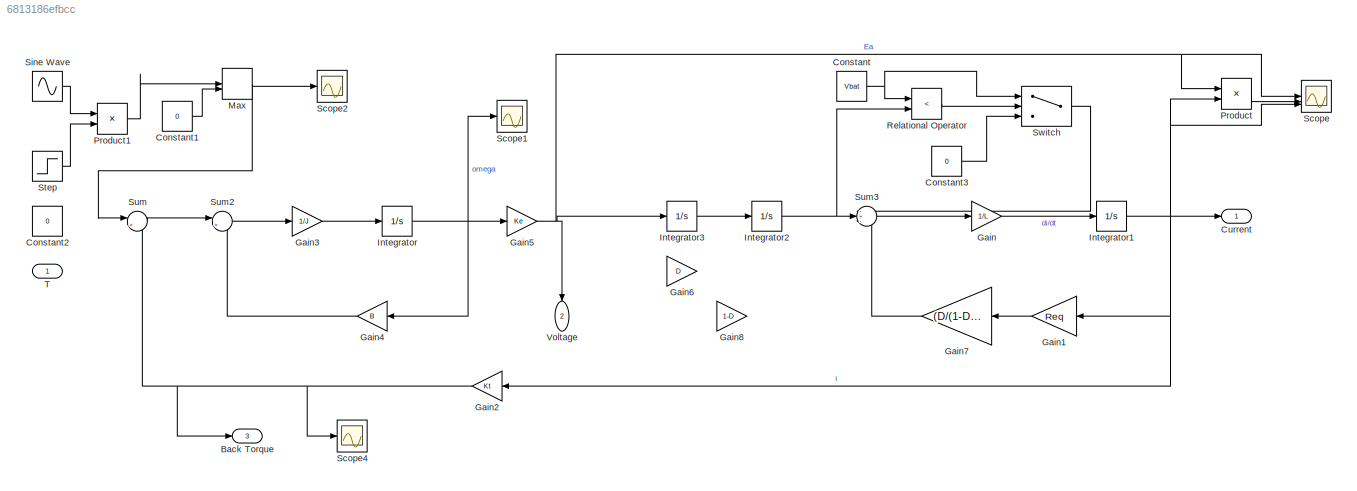
MODEL slx_6813186efbcc
KIND model
CONFIG AbsTol = auto
CONFIG EnableMultiTasking = off
CONFIG FixedStep = auto
CONFIG MaxStep = auto
CONFIG MinStep = auto
CONFIG RelTol = 1e-6
CONFIG SampleTimeConstraint = Unconstrained
CONFIG SolverName = VariableStepAuto
CONFIG StartTime = 0.0
CONFIG StopTime = 10
WORKSPACE source: mxarray member
WORKSPACE B = 0.1
WORKSPACE D = 0.4
WORKSPACE J = 0.01
WORKSPACE Ke = 0.01
WORKSPACE Kt = 0.01
WORKSPACE L = 0.5
WORKSPACE Req = 1
WORKSPACE Vbat = 24
BLOCK [Outport] Back Torque
  Port = 3
BLOCK [Constant] Constant
  Value = Vbat
BLOCK [Constant] Constant1
  Value = 0
BLOCK [Constant] Constant2
  Value = 0
BLOCK [Constant] Constant3
  Value = 0
BLOCK [Outport] Current
BLOCK [Gain] Gain
  Gain = 1/L
BLOCK [Gain] Gain1
  Gain = Req
  NameLocation = top
BLOCK [Gain] Gain2
  Gain = Kt
  NameLocation = top
BLOCK [Gain] Gain3
  Gain = 1/J
BLOCK [Gain] Gain4
  Gain = B
  NameLocation = top
BLOCK [Gain] Gain5
  Gain = Ke
BLOCK [Gain] Gain6
  Gain = D
BLOCK [Gain] Gain7
  Gain = (D/(1-D))^2
  NameLocation = top
BLOCK [Gain] Gain8
  Gain = 1-D
BLOCK [Integrator] Integrator
BLOCK [Integrator] Integrator1
BLOCK [Integrator] Integrator2
BLOCK [Integrator] Integrator3
BLOCK [MinMax] Max
  Function = max
  Inputs = 2
BLOCK [Product] Product
BLOCK [Product] Product1
BLOCK [RelationalOperator] Relational Operator
  InputSameDT = off
  Operator = <
  OutDataTypeStr = boolean
  RndMeth = Simplest
BLOCK [Scope] Scope
  ActiveDisplayYMaximum = 64.818299057419381
  ActiveDisplayYMinimum = -7.2605692447526673
  Floating = off
  GraphicalSettings = {"Style":{"BackgroundColor":[0.12941176470588237,0.12941176470588237,0.12941176470588237],"AxesColor":[0.07058823529411765,0.07058823529411765,0.07058823529411765],"LabelsColor":[0.8509803921568627,0.8509803921568627,0.8509803921568627],"PreserveColors":false,"Visible":[true,true,true],"LineStyle":["-","-","-"],"LineWidth":[1.5,1.5,1.5],"BarWidth":[0.9,0.9,0.9],"LineColor":["auto","auto","auto"],"...<+2822ch>
  LayoutDimensionsString = [3 1]
  MultipleDisplayCache = [{"MaxYLimMag":64.818299057419381,"MaxYLimReal":64.818299057419381,"MinYLimMag":0,"MinYLimReal":-7.2605692447526673,"PlotAsMagnitudePhase":false,"ShowGrid":true,"ShowLegend":true,"Title":"%<SignalLabel>","YLabel":""},{"MaxYLimMag":3708.1297786175783,"MaxYLimReal":3708.1297786175783,"MinYLimMag":0,"MinYLimReal":-415.11449227455296,"PlotAsMagnitudePhase":false,"ShowGrid":true,"ShowLegend":true,"Titl...<+241ch>
  NumInputPorts = 3
  ScopeFrameLocation = window
  ShowLegend = on
  WasSavedAsWebScope = on
  WindowPosition = [962.000000,50.000000,958.000000,1000.000000,]
BLOCK [Scope] Scope1
  ActiveDisplayYMaximum = 6560.77635
  ActiveDisplayYMinimum = -729.29894
  DataLoggingVariableName = ScopeData1
  Floating = off
  GraphicalSettings = {"GraphicalSettings":{"LegacySettings":true,"Style":{"Style":{"AxesColor":"[0 0 0]","ChannelNames":[""],"ColorOrder":"[1 0.909803921568627 0.392156862745098;0.149019607843137 0.549019607843137 0.866666666666667;0.96078431372549 0.466666666666667 0.16078431372549;0.286274509803922 0.858823529411765 0.250980392156863;0.752941176470588 0.36078431372549 0.984313725490196;0.423529411764706 0.9568627450...<+432ch>
  MultipleDisplayCache = [{"MaxYLimMag":6560.77635,"MaxYLimReal":6560.77635,"MinYLimMag":0,"MinYLimReal":-729.29894,"PlotAsMagnitudePhase":false,"ShowGrid":true,"ShowLegend":false,"Title":"%<SignalLabel>","YLabel":""}]
  NumInputPorts = 1
  WasSavedAsWebScope = on
  WindowPosition = [218 9 1223 780]
BLOCK [Scope] Scope2
  ActiveDisplayYMaximum = 1124.93794
  ActiveDisplayYMinimum = -124.9931
  DataLoggingVariableName = ScopeData2
  Floating = off
  GraphicalSettings = {"GraphicalSettings":{"LegacySettings":true,"Style":{"AxesScalingProperties":{"ScaleAxesLimitsAtStop":false},"Style":{"AxesColor":"[0 0 0]","ChannelNames":[""],"ColorOrder":"[1 0.909803921568627 0.392156862745098;0.149019607843137 0.549019607843137 0.866666666666667;0.96078431372549 0.466666666666667 0.16078431372549;0.286274509803922 0.858823529411765 0.250980392156863;0.752941176470588 0.3607843...<+513ch>
  MultipleDisplayCache = [{"MaxYLimMag":1124.93794,"MaxYLimReal":1124.93794,"MinYLimMag":0,"MinYLimReal":-124.9931,"PlotAsMagnitudePhase":false,"ShowGrid":true,"ShowLegend":false,"Title":"%<SignalLabel>","YLabel":""}]
  NumInputPorts = 1
  WasSavedAsWebScope = on
  WindowPosition = [218 9 1223 780]
BLOCK [Scope] Scope4
  ActiveDisplayYMaximum = 0.02997
  ActiveDisplayYMinimum = -0.26973
  DataLoggingVariableName = ScopeData4
  Floating = off
  GraphicalSettings = {"GraphicalSettings":{"LegacySettings":true,"Style":{"AxesScalingProperties":{"ScaleAxesLimitsAtStop":false},"Style":{"AxesColor":"[0 0 0]","ChannelNames":[""],"ColorOrder":"[1 0.909803921568627 0.392156862745098;0.149019607843137 0.549019607843137 0.866666666666667;0.96078431372549 0.466666666666667 0.16078431372549;0.286274509803922 0.858823529411765 0.250980392156863;0.752941176470588 0.3607843...<+513ch>
  MultipleDisplayCache = [{"MaxYLimMag":0.26973,"MaxYLimReal":0.02997,"MinYLimMag":0,"MinYLimReal":-0.26973,"PlotAsMagnitudePhase":false,"ShowGrid":true,"ShowLegend":false,"Title":"%<SignalLabel>","YLabel":""}]
  NumInputPorts = 1
  WasSavedAsWebScope = on
  WindowPosition = [218 9 1223 780]
BLOCK [Sin] Sine Wave
  Amplitude = 1e3
  Frequency = 20
  SampleTime = 0
BLOCK [Step] Step
  After = 0
  Before = 1
  SampleTime = 0
  Time = 5
BLOCK [Sum] Sum
  Inputs = |+-
BLOCK [Sum] Sum2
  Inputs = |+-
BLOCK [Sum] Sum3
  Inputs = -+-
BLOCK [Switch] Switch
  Criteria = u2 > Threshold
  InputSameDT = off
  SaturateOnIntegerOverflow = off
  Threshold = 0.5
BLOCK [Inport] T
BLOCK [Outport] Voltage
  NameLocation = left
  Port = 2
LINE Constant1:1 -> Max:2
LINE Constant3:1 -> Switch:3
NET Constant:1 -> Relational Operator:1, Switch:1
LINE Gain1:1 -> Gain7:1
NET Gain2:1 -> Back Torque:1, Scope4:1, Sum:2
LINE Gain3:1 -> Integrator:1
LINE Gain4:1 -> Sum2:2
NET Gain5:1 -> Integrator3:1, Product:1, Scope:1, Voltage:1
LINE Gain7:1 -> Sum3:3
LINE Gain:1 -> Integrator1:1
NET Integrator1:1 -> Current:1, Gain1:1, Gain2:1, Product:2, Scope:3
NET Integrator2:1 -> Relational Operator:2, Sum3:2
LINE Integrator3:1 -> Integrator2:1
NET Integrator:1 -> Gain4:1, Gain5:1, Scope1:1
NET Max:1 -> Scope2:1, Sum:1
LINE Product1:1 -> Max:1
LINE Product:1 -> Scope:2
LINE Relational Operator:1 -> Switch:2
LINE Sine Wave:1 -> Product1:1
LINE Step:1 -> Product1:2
LINE Sum2:1 -> Gain3:1
LINE Sum3:1 -> Gain:1
LINE Sum:1 -> Sum2:1
LINE Switch:1 -> Sum3:1
note: NET lines group one-source signal fan-out (src -> all destinations, sorted); 1:1 wires keep LINE
